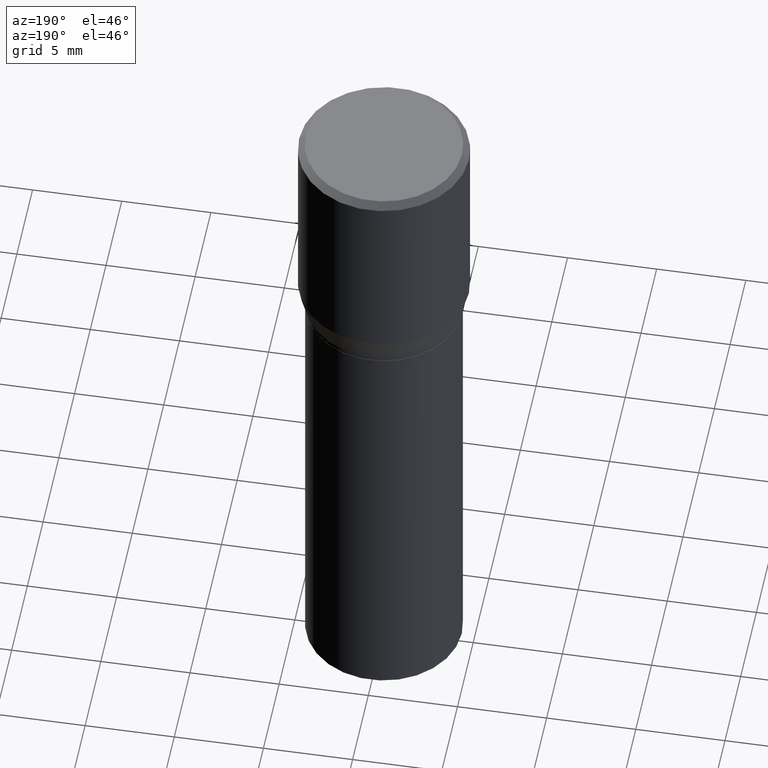
[diagram: clean part render]
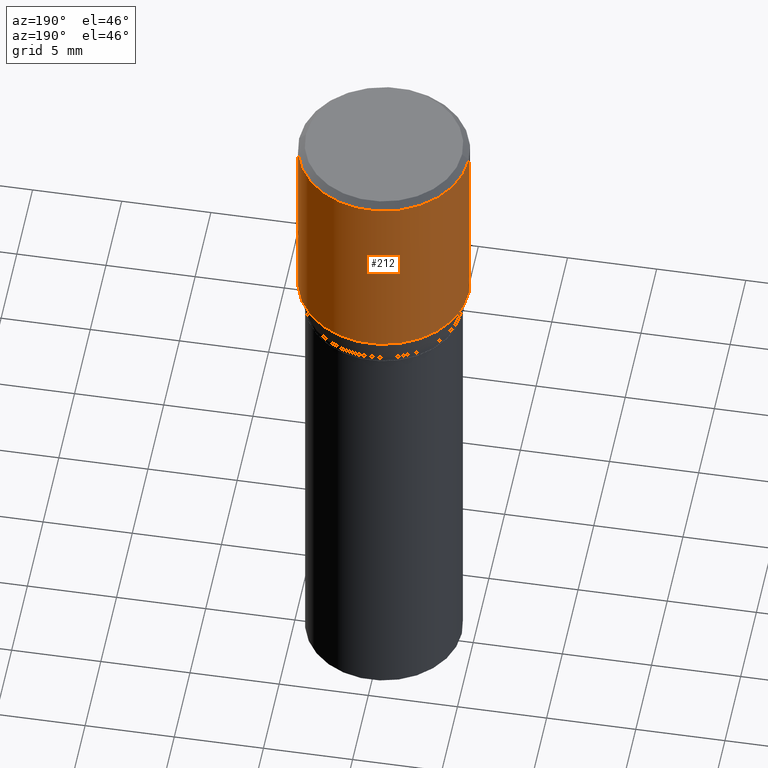
[diagram: same view with one face highlighted and labeled with its STEP entity id]
A machine part, auxiliary view. The second image highlights one B-rep face of the part: STEP entity #212.
In plain terms, the highlighted cylindrical surface (partial cylindrical patch) has radius 4.7625 mm, axis along (-0, 0, 1).
Its self-contained STEP definition (entity closure, byte-faithful):
#1 = DIRECTION ( 'NONE',  ( 1.000000000000000000, -6.982962677686265922E-15, 0.000000000000000000 ) ) ;
#12 = ORIENTED_EDGE ( 'NONE', *, *, #303, .F. ) ;
#14 = AXIS2_PLACEMENT_3D ( 'NONE', #132, #463, #207 ) ;
#26 = CARTESIAN_POINT ( 'NONE',  ( 0.1875000000000000278, -1.309305502066175008E-15, 9.142831454617381013E-30 ) ) ;
#31 = VERTEX_POINT ( 'NONE', #187 ) ;
#39 = CARTESIAN_POINT ( 'NONE',  ( 0.1875000000000000278, -2.816857340395553661E-15, -0.4317800074019257361 ) ) ;
#61 = DIRECTION ( 'NONE',  ( -2.445468806185136597E-29, 3.491481338843145583E-15, 1.000000000000000000 ) ) ;
#64 = CARTESIAN_POINT ( 'NONE',  ( 1.055904539235796751E-29, -1.507551838329378850E-15, -0.4317800074019257361 ) ) ;
#86 = DIRECTION ( 'NONE',  ( 1.000000000000000000, -6.982962677686265922E-15, 4.876176775795935793E-29 ) ) ;
#124 = FACE_OUTER_BOUND ( 'NONE', #287, .T. ) ;
#132 = CARTESIAN_POINT ( 'NONE',  ( 3.668203209277705088E-31, -5.237222008264718399E-17, -0.01499999999999999944 ) ) ;
#172 = CARTESIAN_POINT ( 'NONE',  ( -0.1875000000000000278, 1.332267629550188046E-15, -9.223003294227947991E-30 ) ) ;
#183 = CIRCLE ( 'NONE', #14, 0.1875000000000000278 ) ;
#187 = CARTESIAN_POINT ( 'NONE',  ( 0.1875000000000000278, -1.361677722148822285E-15, -0.01499999999999999944 ) ) ;
#190 = AXIS2_PLACEMENT_3D ( 'NONE', #64, #61, #1 ) ;
#201 = AXIS2_PLACEMENT_3D ( 'NONE', #339, #338, #86 ) ;
#203 = VERTEX_POINT ( 'NONE', #378 ) ;
#207 = DIRECTION ( 'NONE',  ( 1.000000000000000000, -6.982962677686265922E-15, 0.000000000000000000 ) ) ;
#212 = ADVANCED_FACE ( 'NONE', ( #124 ), #453, .T. ) ;
#238 = DIRECTION ( 'NONE',  ( -2.445468806185136877E-29, 3.491481338843145188E-15, 1.000000000000000000 ) ) ;
#271 = LINE ( 'NONE', #26, #293 ) ;
#277 = EDGE_CURVE ( 'NONE', #31, #203, #183, .T. ) ;
#283 = VECTOR ( 'NONE', #238, 39.37007874015748143 ) ;
#287 = EDGE_LOOP ( 'NONE', ( #319, #321, #369, #12 ) ) ;
#293 = VECTOR ( 'NONE', #384, 39.37007874015748143 ) ;
#303 = EDGE_CURVE ( 'NONE', #407, #31, #271, .T. ) ;
#313 = CARTESIAN_POINT ( 'NONE',  ( -0.1875000000000000278, -1.752842087791908777E-16, -0.4317800074019257361 ) ) ;
#319 = ORIENTED_EDGE ( 'NONE', *, *, #322, .T. ) ;
#321 = ORIENTED_EDGE ( 'NONE', *, *, #376, .T. ) ;
#322 = EDGE_CURVE ( 'NONE', #407, #352, #396, .T. ) ;
#338 = DIRECTION ( 'NONE',  ( -2.445468806185136597E-29, 3.491481338843145583E-15, 1.000000000000000000 ) ) ;
#339 = CARTESIAN_POINT ( 'NONE',  ( 0.000000000000000000, 0.000000000000000000, 0.000000000000000000 ) ) ;
#352 = VERTEX_POINT ( 'NONE', #313 ) ;
#369 = ORIENTED_EDGE ( 'NONE', *, *, #277, .F. ) ;
#376 = EDGE_CURVE ( 'NONE', #352, #203, #426, .T. ) ;
#378 = CARTESIAN_POINT ( 'NONE',  ( -0.1875000000000000278, 5.523056003441748841E-16, -0.01499999999999999944 ) ) ;
#384 = DIRECTION ( 'NONE',  ( -2.445468806185136877E-29, 3.491481338843145188E-15, 1.000000000000000000 ) ) ;
#396 = CIRCLE ( 'NONE', #190, 0.1875000000000000278 ) ;
#407 = VERTEX_POINT ( 'NONE', #39 ) ;
#426 = LINE ( 'NONE', #172, #283 ) ;
#453 = CYLINDRICAL_SURFACE ( 'NONE', #201, 0.1875000000000000278 ) ;
#463 = DIRECTION ( 'NONE',  ( -2.445468806185136597E-29, 3.491481338843145583E-15, 1.000000000000000000 ) ) ;